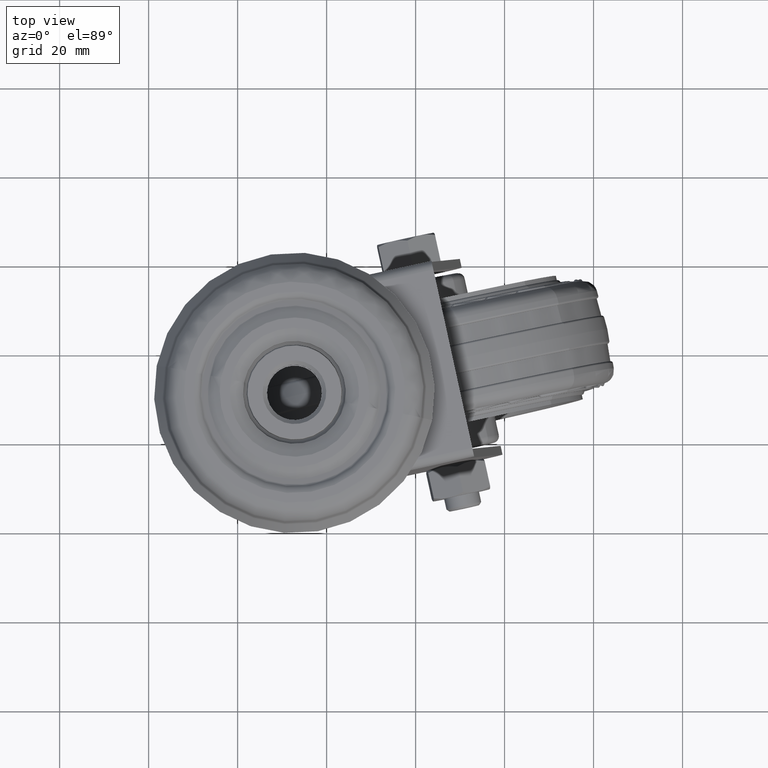
[diagram: clean part render]
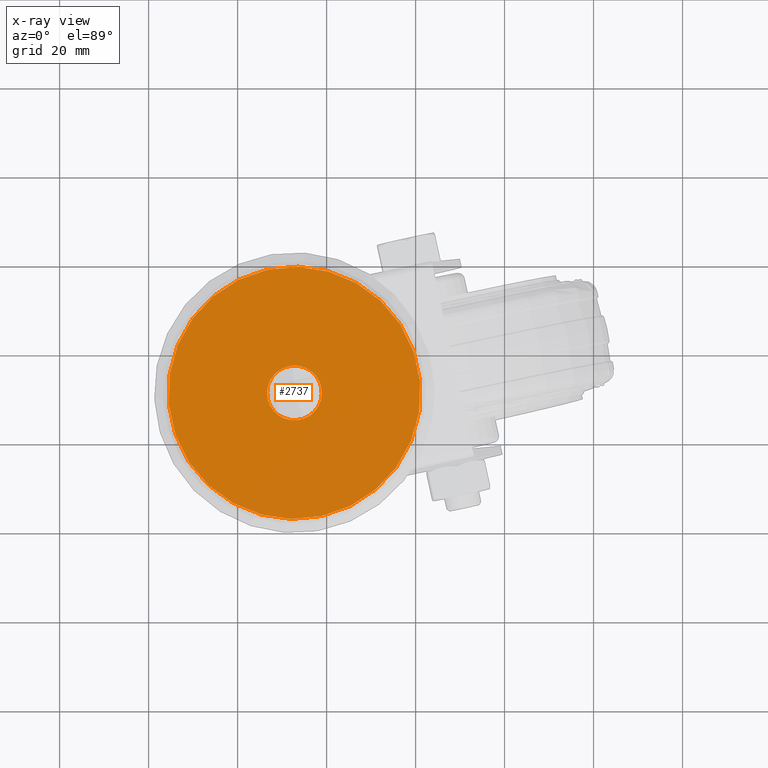
[diagram: x-ray — body ghosted, one internal face saturated and labeled with its STEP entity id]
A machine part, top view, then the same camera in x-ray: the body is ghosted and one INTERNAL B-rep face — a face not visible from any outside direction — is saturated and labeled: STEP entity #2737.
In plain terms, the highlighted planar face has unit normal (-0, -0, 1).
Its self-contained STEP definition (entity closure, byte-faithful):
#388=PLANE('',#3076);
#553=FACE_BOUND('',#973,.T.);
#708=FACE_OUTER_BOUND('',#972,.T.);
#972=EDGE_LOOP('',(#2324));
#973=EDGE_LOOP('',(#2325));
#1188=CIRCLE('',#3077,28.3560311112776);
#1189=CIRCLE('',#3078,6.15);
#1395=VERTEX_POINT('',#10083);
#1396=VERTEX_POINT('',#10085);
#1717=EDGE_CURVE('',#1395,#1395,#1188,.T.);
#1718=EDGE_CURVE('',#1396,#1396,#1189,.T.);
#2324=ORIENTED_EDGE('',*,*,#1717,.F.);
#2325=ORIENTED_EDGE('',*,*,#1718,.F.);
#2737=ADVANCED_FACE('',(#708,#553),#388,.T.);
#3076=AXIS2_PLACEMENT_3D('',#10082,#3759,#3760);
#3077=AXIS2_PLACEMENT_3D('',#10084,#3761,#3762);
#3078=AXIS2_PLACEMENT_3D('',#10086,#3763,#3764);
#3759=DIRECTION('center_axis',(0.,0.,1.));
#3760=DIRECTION('ref_axis',(1.,0.,0.));
#3761=DIRECTION('center_axis',(0.,0.,-1.));
#3762=DIRECTION('ref_axis',(1.,0.,0.));
#3763=DIRECTION('center_axis',(0.,0.,1.));
#3764=DIRECTION('ref_axis',(1.,0.,0.));
#10082=CARTESIAN_POINT('Origin',(4.44089209850063E-15,0.,-9.84986906346441));
#10083=CARTESIAN_POINT('',(7.16151709951166E-15,28.3560311112776,-9.84986906346441));
#10084=CARTESIAN_POINT('Origin',(7.22513358680707E-15,-1.73472347597681E-14,
-9.84986906346441));
#10085=CARTESIAN_POINT('',(-6.15,-7.53157781475622E-16,-9.84986906346441));
#10086=CARTESIAN_POINT('Origin',(0.,0.,-9.84986906346441));